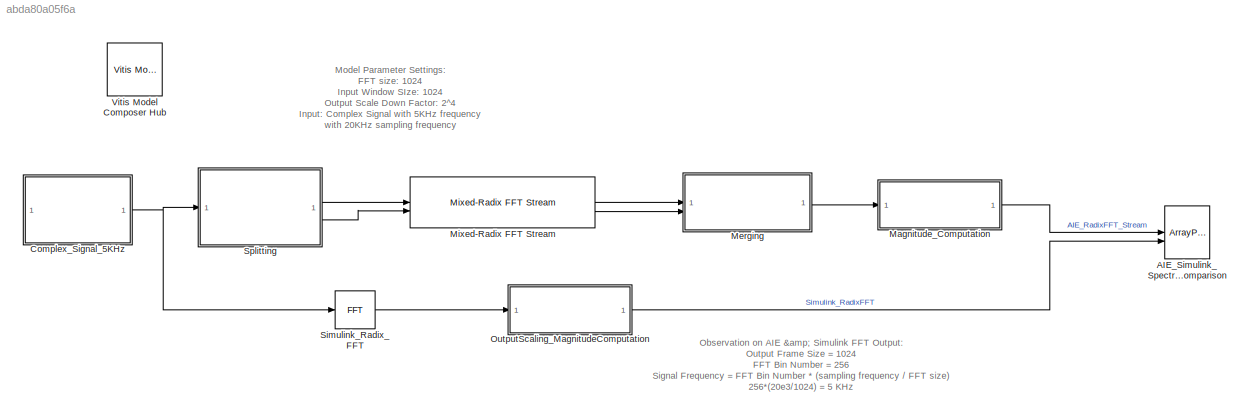
MODEL slx_abda80a05f6a
KIND model
CONFIG AbsTol = auto
CONFIG EnableMultiTasking = off
CONFIG FixedStep = auto
CONFIG MaxStep = auto
CONFIG MinStep = auto
CONFIG RelTol = 1e-3
CONFIG SampleTimeConstraint = Unconstrained
CONFIG SolverName = VariableStepAuto
CONFIG StartTime = 0.0
CONFIG StopTime = 1
BLOCK [ArrayPlot] AIE_Simulink_SpectrumComparison
  AxesScaling = Manual
  GraphicalSettings = {"Style":{"BackgroundColor":[0.15686274509803921,0.15686274509803921,0.15686274509803921],"AxesColor":[0,0,0],"LabelsColor":[0.68627450980392157,0.68627450980392157,0.68627450980392157],"LineStyle":["-","-"],"LineColor":[[1,1,0.066666666666666666],[0.074509803921568626,0.62352941176470589,1]],"LineWidth":[1.5,1.5],"Marker":["none","none"],"FontSize":"small"},"Cursors":{"Enabled":false,"XLocation":...<+391ch>
  NumInputPorts = 2
  PlotType = Line
  ShowLegend = on
  WasSavedAsWebScope = on
  WindowPosition = [83.000000,69.000000,1116.000000,539.000000,]
  YLimits = [-10,100]
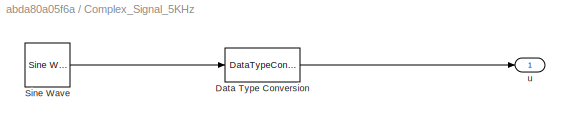
BLOCK [SubSystem] Complex_Signal_5KHz
BLOCK [DataTypeConversion] Complex_Signal_5KHz/Data Type Conversion
  OutDataTypeStr = int16
  RndMeth = Floor
  SaturateOnIntegerOverflow = off
BLOCK [Reference] Complex_Signal_5KHz/Sine Wave  REF=dspsrcs4/Sine Wave
  SourceBlock = dspsrcs4/Sine Wave
  SourceType = Sine Wave
BLOCK [Outport] Complex_Signal_5KHz/u
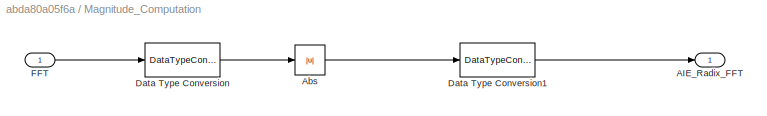
BLOCK [SubSystem] Magnitude_Computation
BLOCK [Outport] Magnitude_Computation/AIE_Radix_FFT
BLOCK [Abs] Magnitude_Computation/Abs
  SaturateOnIntegerOverflow = off
BLOCK [DataTypeConversion] Magnitude_Computation/Data Type Conversion
  OutDataTypeStr = single
  RndMeth = Floor
  SaturateOnIntegerOverflow = off
BLOCK [DataTypeConversion] Magnitude_Computation/Data Type Conversion1
  OutDataTypeStr = int16
  RndMeth = Floor
  SaturateOnIntegerOverflow = off
BLOCK [Inport] Magnitude_Computation/FFT
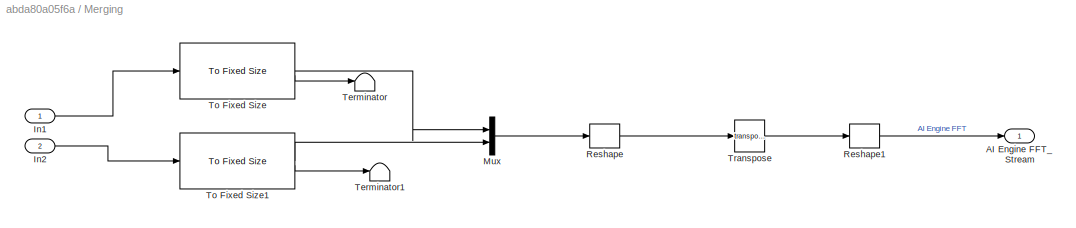
BLOCK [SubSystem] Merging
BLOCK [Outport] Merging/AI Engine FFT_Stream
BLOCK [Inport] Merging/In1
BLOCK [Inport] Merging/In2
  Port = 2
BLOCK [Mux] Merging/Mux
  DisplayOption = bar
  Inputs = 2
BLOCK [Reshape] Merging/Reshape
  OutputDimensionality = Customize
  OutputDimensions = [512, 2]
BLOCK [Reshape] Merging/Reshape1
  OutputDimensions = [1, 10]
BLOCK [Terminator] Merging/Terminator
BLOCK [Terminator] Merging/Terminator1
BLOCK [Reference] Merging/To Fixed Size  REF=aieUtilities/To Fixed Size
  SourceBlock = aieUtilities/To Fixed Size
  SourceType = To Fixed Size
BLOCK [Reference] Merging/To Fixed Size1  REF=aieUtilities/To Fixed Size
  SourceBlock = aieUtilities/To Fixed Size
  SourceType = To Fixed Size
BLOCK [Math] Merging/Transpose
  Operator = transpose
BLOCK [Reference] Mixed-Radix FFT Stream  REF=aieDSP/Mixed-Radix FFT Stream
  SourceBlock = aieDSP/Mixed-Radix FFT Stream
  SourceType = Mixed-Radix FFT Stream
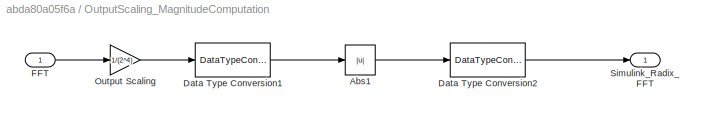
BLOCK [SubSystem] OutputScaling_MagnitudeComputation
BLOCK [Abs] OutputScaling_MagnitudeComputation/Abs1
  SaturateOnIntegerOverflow = off
BLOCK [DataTypeConversion] OutputScaling_MagnitudeComputation/Data Type Conversion1
  OutDataTypeStr = single
  RndMeth = Floor
  SaturateOnIntegerOverflow = off
BLOCK [DataTypeConversion] OutputScaling_MagnitudeComputation/Data Type Conversion2
  OutDataTypeStr = int16
  RndMeth = Floor
  SaturateOnIntegerOverflow = off
BLOCK [Inport] OutputScaling_MagnitudeComputation/FFT
BLOCK [Gain] OutputScaling_MagnitudeComputation/Output Scaling 
  Gain = 1/(2^4)
BLOCK [Outport] OutputScaling_MagnitudeComputation/Simulink_Radix_FFT
BLOCK [Reference] Simulink_Radix_FFT  REF=dspxfrm3/FFT
  SourceBlock = dspxfrm3/FFT
  SourceType = FFT
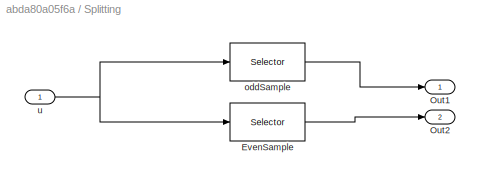
BLOCK [SubSystem] Splitting
BLOCK [Selector] Splitting/EvenSample
  IndexOptions = Index vector (dialog)
  Indices = 2:2:1024
  InputPortWidth = 1024
  OutputSizes = 1
BLOCK [Outport] Splitting/Out1
BLOCK [Outport] Splitting/Out2
  Port = 2
BLOCK [Selector] Splitting/oddSample
  IndexOptions = Index vector (dialog)
  Indices = 1:2:1024
  InputPortWidth = 1024
  OutputSizes = 1
BLOCK [Inport] Splitting/u
BLOCK [Reference] Vitis Model Composer Hub  REF=vmcUtilities/Vitis Model Composer Hub
  SourceBlock = vmcUtilities/Vitis Model Composer Hub
  SourceType = VMC Hub
  Tag = genX
  UserDataPersistent = on
ANNOTATION (root): Model Parameter Settings: FFT size: 1024 Input Window SIze: 1024 Output Scale Down Factor: 2^4 Input: Complex Signal with 5KHz frequency with 20KHz sampling frequency
ANNOTATION (root): Observation on AIE & Simulink FFT Output: Output Frame Size = 1024 FFT Bin Number = 256 Signal Frequency = FFT Bin Number * (sampling frequency / FFT size) 256*(20e3/1024) = 5 KHz
LINE Complex_Signal_5KHz/Data Type Conversion:1 -> Complex_Signal_5KHz/u:1
LINE Complex_Signal_5KHz/Sine Wave:1 -> Complex_Signal_5KHz/Data Type Conversion:1
NET Complex_Signal_5KHz:1 -> Simulink_Radix_FFT:1, Splitting:1
LINE Magnitude_Computation/Abs:1 -> Magnitude_Computation/Data Type Conversion1:1
LINE Magnitude_Computation/Data Type Conversion1:1 -> Magnitude_Computation/AIE_Radix_FFT:1
LINE Magnitude_Computation/Data Type Conversion:1 -> Magnitude_Computation/Abs:1
LINE Magnitude_Computation/FFT:1 -> Magnitude_Computation/Data Type Conversion:1
LINE Magnitude_Computation:1 -> AIE_Simulink_SpectrumComparison:1
LINE Merging/In1:1 -> Merging/To Fixed Size:1
LINE Merging/In2:1 -> Merging/To Fixed Size1:1
LINE Merging/Mux:1 -> Merging/Reshape:1
LINE Merging/Reshape1:1 -> Merging/AI Engine FFT_Stream:1
LINE Merging/Reshape:1 -> Merging/Transpose:1
LINE Merging/To Fixed Size1:1 -> Merging/Mux:2
LINE Merging/To Fixed Size1:2 -> Merging/Terminator1:1
LINE Merging/To Fixed Size:1 -> Merging/Mux:1
LINE Merging/To Fixed Size:2 -> Merging/Terminator:1
LINE Merging/Transpose:1 -> Merging/Reshape1:1
LINE Merging:1 -> Magnitude_Computation:1
LINE Mixed-Radix FFT Stream:1 -> Merging:1
LINE Mixed-Radix FFT Stream:2 -> Merging:2
LINE OutputScaling_MagnitudeComputation/Abs1:1 -> OutputScaling_MagnitudeComputation/Data Type Conversion2:1
LINE OutputScaling_MagnitudeComputation/Data Type Conversion1:1 -> OutputScaling_MagnitudeComputation/Abs1:1
LINE OutputScaling_MagnitudeComputation/Data Type Conversion2:1 -> OutputScaling_MagnitudeComputation/Simulink_Radix_FFT:1
LINE OutputScaling_MagnitudeComputation/FFT:1 -> OutputScaling_MagnitudeComputation/Output Scaling :1
LINE OutputScaling_MagnitudeComputation/Output Scaling :1 -> OutputScaling_MagnitudeComputation/Data Type Conversion1:1
LINE OutputScaling_MagnitudeComputation:1 -> AIE_Simulink_SpectrumComparison:2
LINE Simulink_Radix_FFT:1 -> OutputScaling_MagnitudeComputation:1
LINE Splitting/EvenSample:1 -> Splitting/Out2:1
LINE Splitting/oddSample:1 -> Splitting/Out1:1
NET Splitting/u:1 -> Splitting/EvenSample:1, Splitting/oddSample:1
LINE Splitting:1 -> Mixed-Radix FFT Stream:1
LINE Splitting:2 -> Mixed-Radix FFT Stream:2
note: NET lines group one-source signal fan-out (src -> all destinations, sorted); 1:1 wires keep LINE
